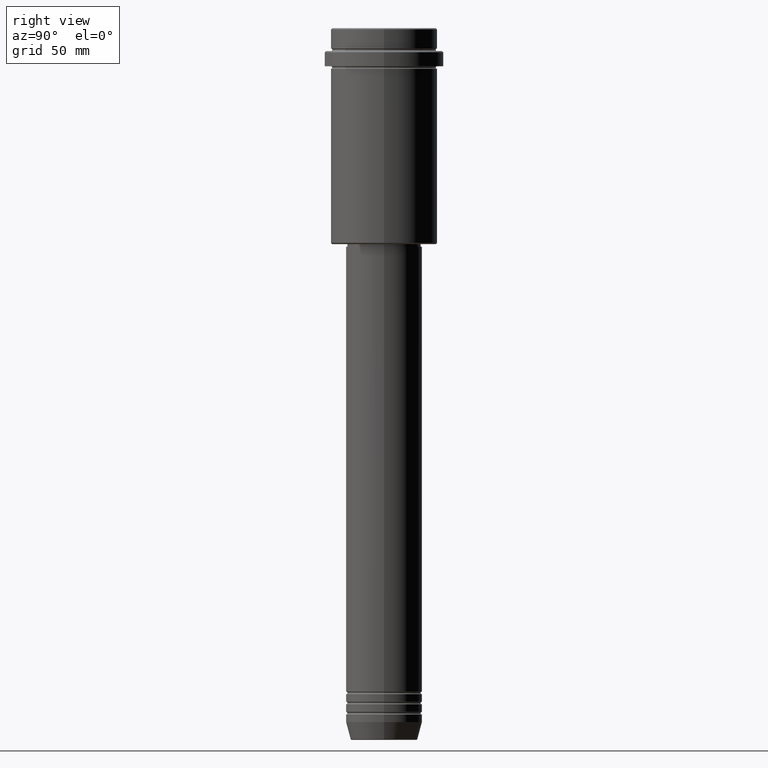
[diagram: clean part render]
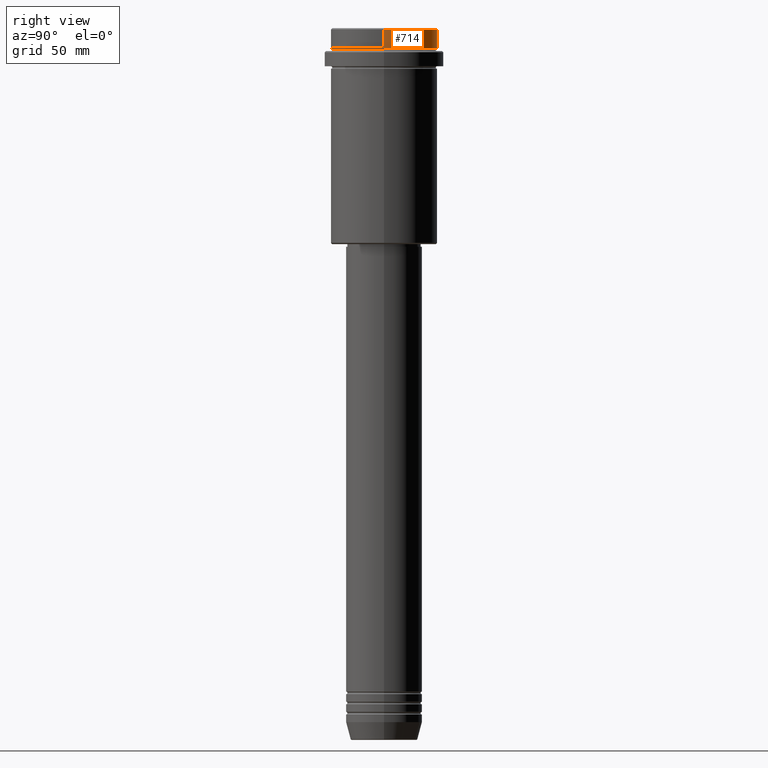
[diagram: same view with one face highlighted and labeled with its STEP entity id]
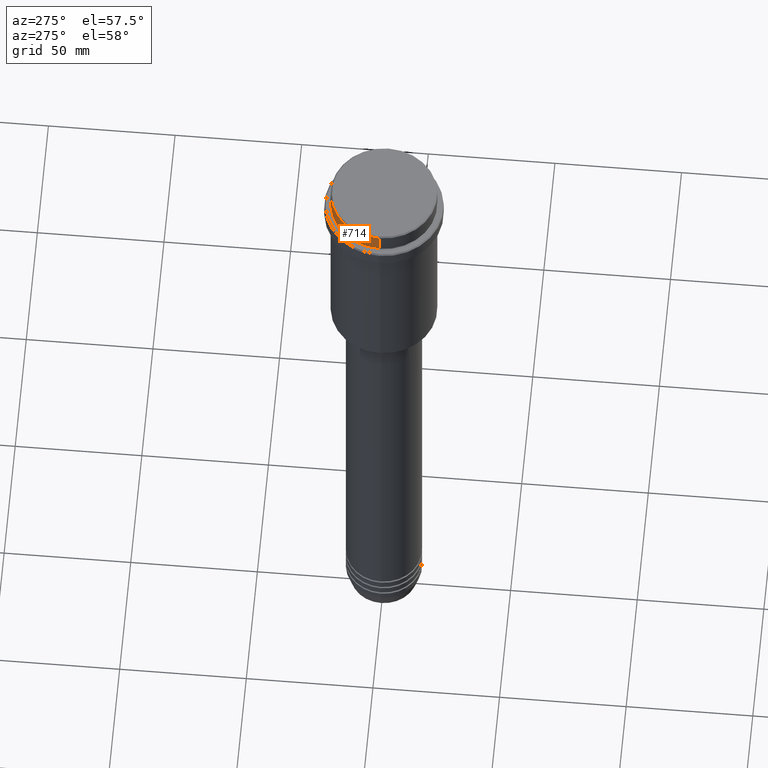
[diagram: same view with one face highlighted and labeled with its STEP entity id]
A machine part, right view. The second image highlights one B-rep face of the part: STEP entity #714.
A second angle (auxiliary view) of the same face is appended — the face is thin or edge-on in the first view.
In plain terms, the highlighted cylindrical surface (partial cylindrical patch) has radius 21 mm, axis along (-0, -0, 1).
Its self-contained STEP definition (entity closure, byte-faithful):
#55 = CIRCLE ( 'NONE', #956, 20.99999999999999645 ) ;
#62 = DIRECTION ( 'NONE',  ( -0.000000000000000000, -0.000000000000000000, 1.000000000000000000 ) ) ;
#86 = VERTEX_POINT ( 'NONE', #121 ) ;
#112 = VERTEX_POINT ( 'NONE', #1141 ) ;
#117 = EDGE_CURVE ( 'NONE', #1364, #86, #1353, .T. ) ;
#121 = CARTESIAN_POINT ( 'NONE',  ( 20.99999999999999645, 0.000000000000000000, -0.4999999999999796274 ) ) ;
#167 = CARTESIAN_POINT ( 'NONE',  ( 20.99999999999999645, 0.000000000000000000, 0.000000000000000000 ) ) ;
#206 = CARTESIAN_POINT ( 'NONE',  ( 0.000000000000000000, 0.000000000000000000, 0.000000000000000000 ) ) ;
#315 = DIRECTION ( 'NONE',  ( 1.000000000000000000, 0.000000000000000000, 0.000000000000000000 ) ) ;
#336 = DIRECTION ( 'NONE',  ( 1.000000000000000000, 0.000000000000000000, 0.000000000000000000 ) ) ;
#344 = VECTOR ( 'NONE', #62, 1000.000000000000000 ) ;
#380 = ORIENTED_EDGE ( 'NONE', *, *, #1169, .T. ) ;
#389 = EDGE_CURVE ( 'NONE', #112, #748, #830, .T. ) ;
#392 = CARTESIAN_POINT ( 'NONE',  ( -20.99999999999999645, 2.571758278209441267E-15, -0.4999999999999796274 ) ) ;
#420 = FACE_OUTER_BOUND ( 'NONE', #851, .T. ) ;
#607 = CARTESIAN_POINT ( 'NONE',  ( -20.99999999999999645, 2.571758278209441267E-15, 0.000000000000000000 ) ) ;
#658 = CIRCLE ( 'NONE', #1020, 20.99999999999999645 ) ;
#714 = ADVANCED_FACE ( 'NONE', ( #420 ), #763, .T. ) ;
#748 = VERTEX_POINT ( 'NONE', #392 ) ;
#763 = CYLINDRICAL_SURFACE ( 'NONE', #1120, 20.99999999999999645 ) ;
#771 = DIRECTION ( 'NONE',  ( 1.000000000000000000, 0.000000000000000000, 0.000000000000000000 ) ) ;
#825 = ORIENTED_EDGE ( 'NONE', *, *, #389, .T. ) ;
#830 = LINE ( 'NONE', #607, #344 ) ;
#838 = CARTESIAN_POINT ( 'NONE',  ( 0.000000000000000000, 0.000000000000000000, -7.999999999999998224 ) ) ;
#851 = EDGE_LOOP ( 'NONE', ( #380, #825, #1132, #1255 ) ) ;
#931 = CARTESIAN_POINT ( 'NONE',  ( 20.99999999999999645, 0.000000000000000000, -7.999999999999998224 ) ) ;
#956 = AXIS2_PLACEMENT_3D ( 'NONE', #838, #1410, #315 ) ;
#1010 = DIRECTION ( 'NONE',  ( 0.000000000000000000, 0.000000000000000000, -1.000000000000000000 ) ) ;
#1020 = AXIS2_PLACEMENT_3D ( 'NONE', #1313, #1010, #771 ) ;
#1120 = AXIS2_PLACEMENT_3D ( 'NONE', #206, #1322, #336 ) ;
#1132 = ORIENTED_EDGE ( 'NONE', *, *, #1220, .T. ) ;
#1135 = VECTOR ( 'NONE', #1247, 1000.000000000000000 ) ;
#1141 = CARTESIAN_POINT ( 'NONE',  ( -20.99999999999999645, 2.571758278209441267E-15, -7.999999999999998224 ) ) ;
#1169 = EDGE_CURVE ( 'NONE', #1364, #112, #55, .T. ) ;
#1220 = EDGE_CURVE ( 'NONE', #748, #86, #658, .T. ) ;
#1247 = DIRECTION ( 'NONE',  ( -0.000000000000000000, -0.000000000000000000, 1.000000000000000000 ) ) ;
#1255 = ORIENTED_EDGE ( 'NONE', *, *, #117, .F. ) ;
#1313 = CARTESIAN_POINT ( 'NONE',  ( 0.000000000000000000, 0.000000000000000000, -0.4999999999999796274 ) ) ;
#1322 = DIRECTION ( 'NONE',  ( -0.000000000000000000, -0.000000000000000000, 1.000000000000000000 ) ) ;
#1353 = LINE ( 'NONE', #167, #1135 ) ;
#1364 = VERTEX_POINT ( 'NONE', #931 ) ;
#1410 = DIRECTION ( 'NONE',  ( -0.000000000000000000, -0.000000000000000000, 1.000000000000000000 ) ) ;